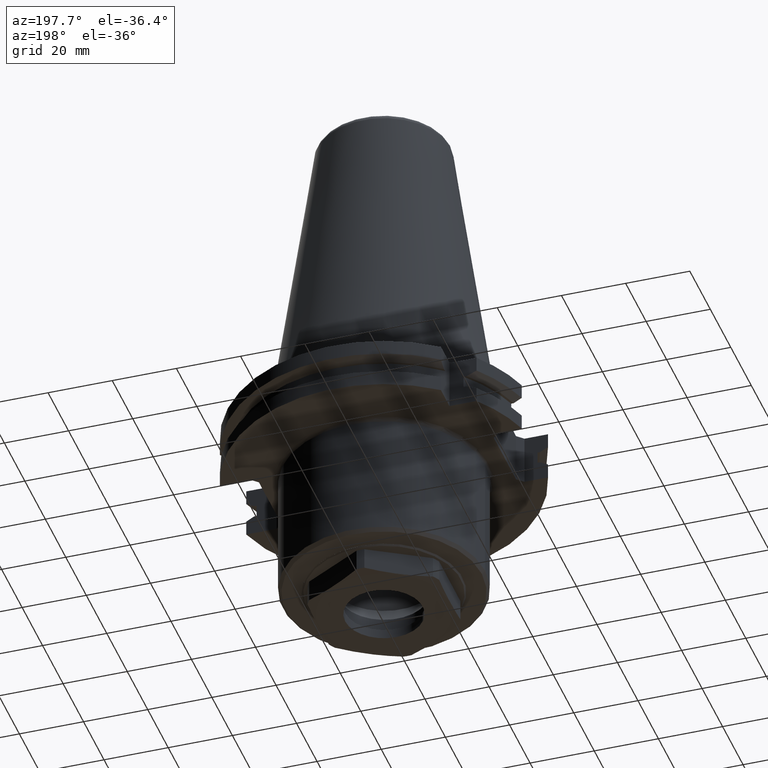
[diagram: clean part render]
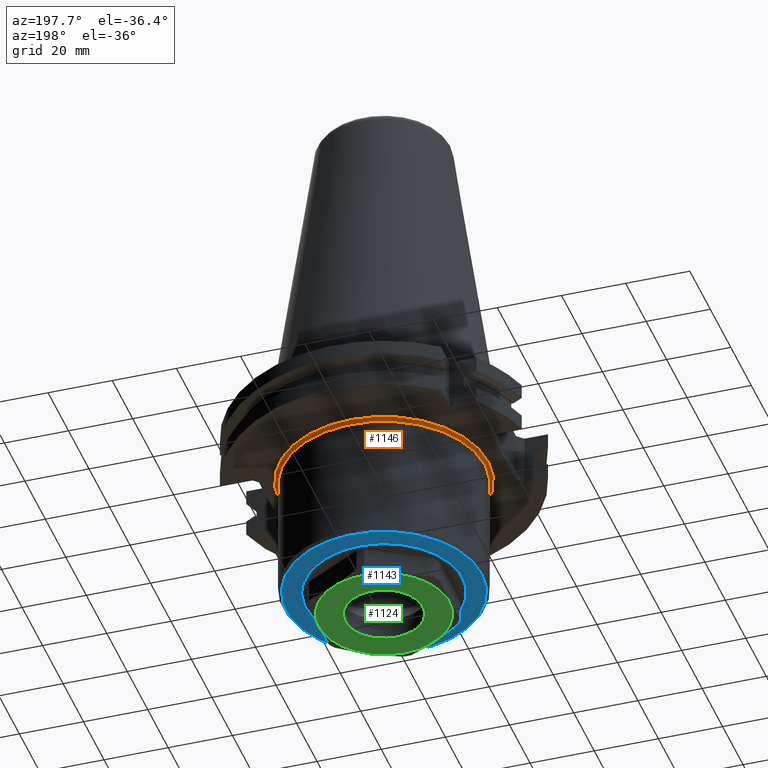
[diagram: same view with three faces highlighted in distinct colors, each labeled with its STEP entity id]
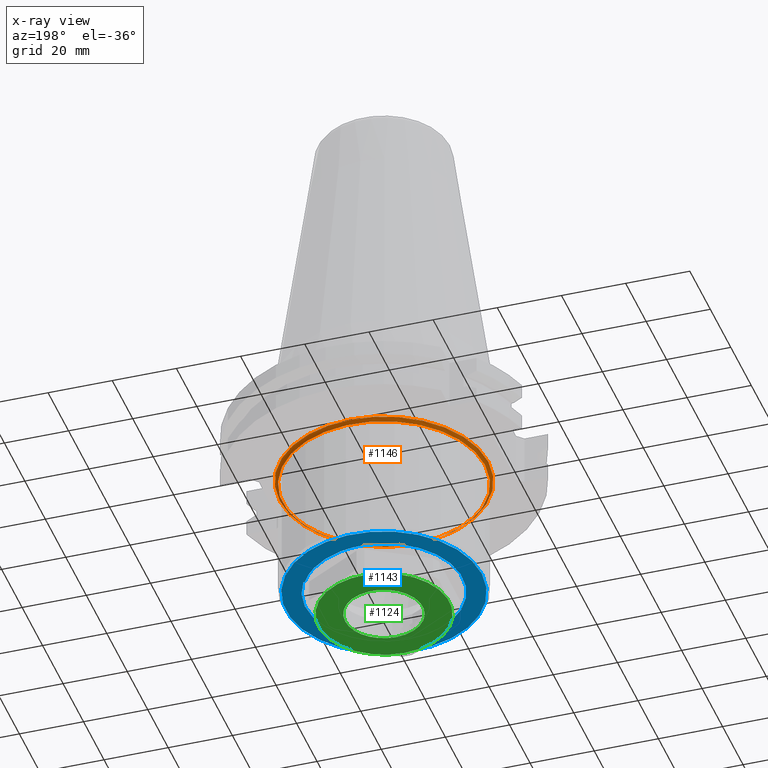
[diagram: x-ray of the same camera — body ghosted, the three highlighted faces saturated]
A machine part, auxiliary view with three faces highlighted in distinct colors.
The next image is the same camera in x-ray (body ghosted, the three faces saturated) — at least one of them is partly hidden behind the body in this view.
Their STEP definitions:

[orange] entity #1146 — the highlighted toroidal blend (fillet) surface has major radius 32.5 mm and minor (blend) radius 1 mm.
#20=TOROIDAL_SURFACE('',#1247,32.5,1.);
#350=ORIENTED_EDGE('',*,*,#629,.T.);
#351=ORIENTED_EDGE('',*,*,#628,.F.);
#628=EDGE_CURVE('',#777,#777,#876,.T.);
#629=EDGE_CURVE('',#778,#778,#877,.T.);
#777=VERTEX_POINT('',#1896);
#778=VERTEX_POINT('',#1899);
#876=CIRCLE('',#1246,31.5);
#877=CIRCLE('',#1248,32.5);
#942=EDGE_LOOP('',(#350));
#943=EDGE_LOOP('',(#351));
#1031=FACE_BOUND('',#942,.T.);
#1032=FACE_BOUND('',#943,.T.);
#1146=ADVANCED_FACE('',(#1031,#1032),#20,.F.);
#1246=AXIS2_PLACEMENT_3D('',#1895,#1432,#1433);
#1247=AXIS2_PLACEMENT_3D('',#1897,#1434,#1435);
#1248=AXIS2_PLACEMENT_3D('',#1898,#1436,#1437);
#1432=DIRECTION('',(0.,2.22044604925031E-16,-1.));
#1433=DIRECTION('',(-1.,0.,0.));
#1434=DIRECTION('',(0.,2.22044604925031E-16,-1.));
#1435=DIRECTION('',(-1.,0.,0.));
#1436=DIRECTION('',(0.,2.22044604925031E-16,-1.));
#1437=DIRECTION('',(-1.,0.,0.));
#1895=CARTESIAN_POINT('',(0.,4.46309655899313E-15,-20.1));
#1896=CARTESIAN_POINT('',(-31.5,4.46309655899313E-15,-20.1));
#1897=CARTESIAN_POINT('',(0.,4.46309655899313E-15,-20.1));
#1898=CARTESIAN_POINT('',(0.,4.2410519540681E-15,-19.1));
#1899=CARTESIAN_POINT('',(-32.5,4.2410519540681E-15,-19.1));

[blue] entity #1143 — the highlighted planar face has unit normal (0, -0, 1).
#65=LINE('',#1863,#150);
#150=VECTOR('',#1412,1000.);
#223=B_SPLINE_CURVE_WITH_KNOTS('',3,(#1790,#1791,#1792,#1793,#1794,#1795),
 .UNSPECIFIED.,.F.,.F.,(4,1,1,4),(0.0299331012289522,0.0345778687516213,
0.0392226362742903,0.0485121713196284),.UNSPECIFIED.);
#224=B_SPLINE_CURVE_WITH_KNOTS('',3,(#1883,#1884,#1885,#1886,#1887),
 .UNSPECIFIED.,.F.,.F.,(4,1,4),(0.,0.00951308695350648,0.019026173907013),
 .UNSPECIFIED.);
#341=ORIENTED_EDGE('',*,*,#625,.F.);
#342=ORIENTED_EDGE('',*,*,#617,.F.);
#343=ORIENTED_EDGE('',*,*,#624,.F.);
#344=ORIENTED_EDGE('',*,*,#621,.F.);
#345=ORIENTED_EDGE('',*,*,#626,.T.);
#617=EDGE_CURVE('',#768,#770,#223,.T.);
#621=EDGE_CURVE('',#772,#773,#65,.T.);
#624=EDGE_CURVE('',#773,#768,#873,.F.);
#625=EDGE_CURVE('',#770,#772,#224,.T.);
#626=EDGE_CURVE('',#775,#775,#874,.T.);
#768=VERTEX_POINT('',#1788);
#770=VERTEX_POINT('',#1796);
#772=VERTEX_POINT('',#1862);
#773=VERTEX_POINT('',#1864);
#775=VERTEX_POINT('',#1890);
#873=CIRCLE('',#1240,24.5);
#874=CIRCLE('',#1242,30.5);
#936=EDGE_LOOP('',(#341,#342,#343,#344));
#937=EDGE_LOOP('',(#345));
#1025=FACE_BOUND('',#936,.T.);
#1026=FACE_BOUND('',#937,.T.);
#1100=PLANE('',#1241);
#1143=ADVANCED_FACE('',(#1025,#1026),#1100,.F.);
#1240=AXIS2_PLACEMENT_3D('',#1870,#1420,#1421);
#1241=AXIS2_PLACEMENT_3D('',#1888,#1422,#1423);
#1242=AXIS2_PLACEMENT_3D('',#1889,#1424,#1425);
#1412=DIRECTION('',(0.866025403784436,0.500000000000005,1.11022302462517E-16));
#1420=DIRECTION('',(0.,-2.22044604925031E-16,1.));
#1421=DIRECTION('',(0.,-1.,-2.22044604925031E-16));
#1422=DIRECTION('',(0.,-2.22044604925031E-16,1.));
#1423=DIRECTION('',(1.,0.,0.));
#1424=DIRECTION('',(0.,2.22044604925031E-16,-1.));
#1425=DIRECTION('',(-1.,0.,0.));
#1788=CARTESIAN_POINT('',(-11.7806060492072,21.4817904540889,-60.));
#1790=CARTESIAN_POINT('',(-11.7806060492069,21.4817904540884,-60.));
#1791=CARTESIAN_POINT('',(-10.4259766630675,22.1938330578793,-60.));
#1792=CARTESIAN_POINT('',(-7.59490820227571,23.3614127642908,-59.9999999999999));
#1793=CARTESIAN_POINT('',(-1.48916979426893,24.6158866430282,-60.0000000000001));
#1794=CARTESIAN_POINT('',(3.19873105298197,24.2306030788673,-60.));
#1795=CARTESIAN_POINT('',(6.18133702213402,23.3869017319267,-60.));
#1796=CARTESIAN_POINT('',(6.18133702213402,23.3869017319267,-60.));
#1862=CARTESIAN_POINT('',(20.8538917231292,12.0400000000001,-60.));
#1863=CARTESIAN_POINT('',(3.46944695195365E-15,7.31341790055326E-15,-60.));
#1864=CARTESIAN_POINT('',(21.2176223927187,12.2500000000001,-60.));
#1870=CARTESIAN_POINT('',(6.2572184566369E-15,2.43205724323282E-15,-60.));
#1883=CARTESIAN_POINT('',(6.18133702213402,23.3869017319267,-60.));
#1884=CARTESIAN_POINT('',(9.23274355399055,22.5237385023155,-60.));
#1885=CARTESIAN_POINT('',(15.0116317400176,19.6473973155113,-60.));
#1886=CARTESIAN_POINT('',(19.2682784285052,14.7863627874455,-60.));
#1887=CARTESIAN_POINT('',(20.8538917231293,12.04,-60.));
#1888=CARTESIAN_POINT('',(0.,1.33226762955019E-14,-60.));
#1889=CARTESIAN_POINT('',(0.,1.33226762955019E-14,-60.));
#1890=CARTESIAN_POINT('',(-30.5,1.33226762955019E-14,-60.));

[green] entity #1124 — the highlighted planar face has unit normal (0, -0, 1).
#250=ORIENTED_EDGE('',*,*,#578,.F.);
#251=ORIENTED_EDGE('',*,*,#579,.T.);
#578=EDGE_CURVE('',#742,#742,#857,.F.);
#579=EDGE_CURVE('',#743,#743,#858,.T.);
#742=VERTEX_POINT('',#1669);
#743=VERTEX_POINT('',#1671);
#857=CIRCLE('',#1208,12.0999999999999);
#858=CIRCLE('',#1209,20.3875644347018);
#913=EDGE_LOOP('',(#250));
#914=EDGE_LOOP('',(#251));
#1002=FACE_BOUND('',#913,.T.);
#1003=FACE_BOUND('',#914,.T.);
#1091=PLANE('',#1207);
#1124=ADVANCED_FACE('',(#1002,#1003),#1091,.F.);
#1207=AXIS2_PLACEMENT_3D('',#1667,#1333,#1334);
#1208=AXIS2_PLACEMENT_3D('',#1668,#1335,#1336);
#1209=AXIS2_PLACEMENT_3D('',#1670,#1337,#1338);
#1333=DIRECTION('',(2.03262306149789E-16,-5.06536867357927E-16,1.));
#1334=DIRECTION('',(0.,1.,8.32667268468867E-17));
#1335=DIRECTION('',(2.03262306149789E-16,-5.06536867357927E-16,1.));
#1336=DIRECTION('',(0.,-1.,-5.06536867357927E-16));
#1337=DIRECTION('',(-2.03262306149789E-16,5.06536867357927E-16,-1.));
#1338=DIRECTION('',(0.,-1.,-8.32667268468867E-17));
#1667=CARTESIAN_POINT('',(-3.86198381684599E-15,-20.3875644347018,-68.));
#1668=CARTESIAN_POINT('',(0.,0.,-68.));
#1669=CARTESIAN_POINT('',(0.,-12.0999999999999,-68.));
#1670=CARTESIAN_POINT('',(-3.86198381684599E-15,6.62659831331269E-15,-68.));
#1671=CARTESIAN_POINT('',(-3.86198381684599E-15,-20.3875644347018,-68.));